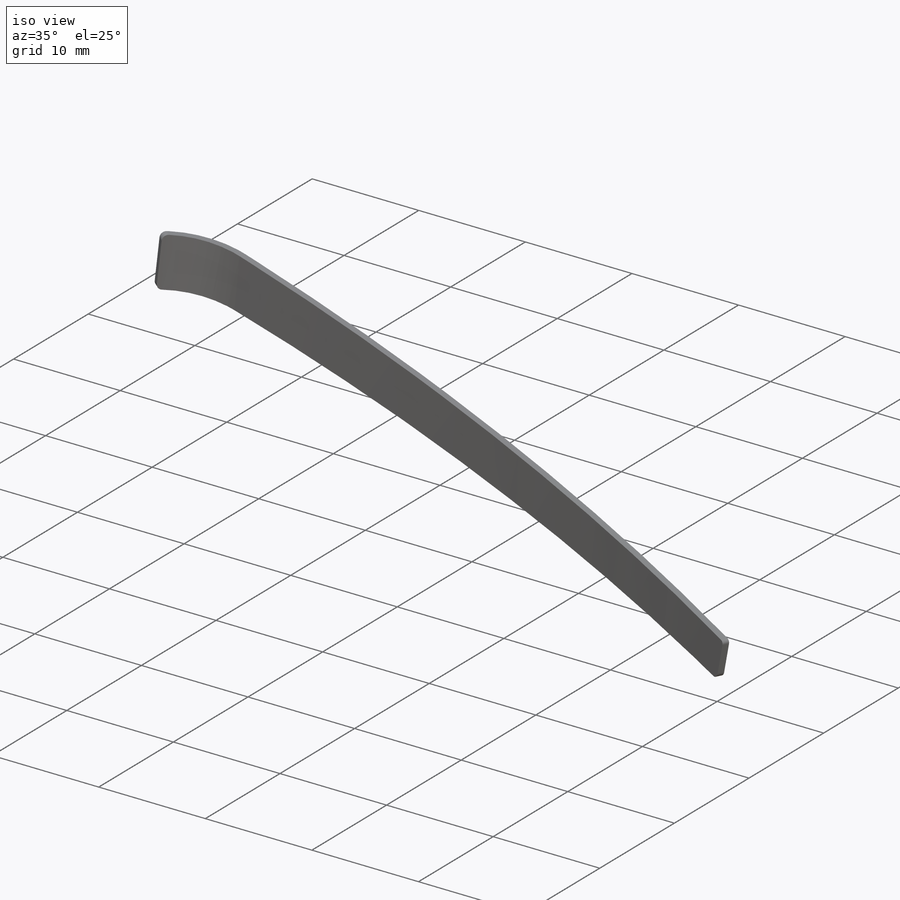
[diagram: iso view]
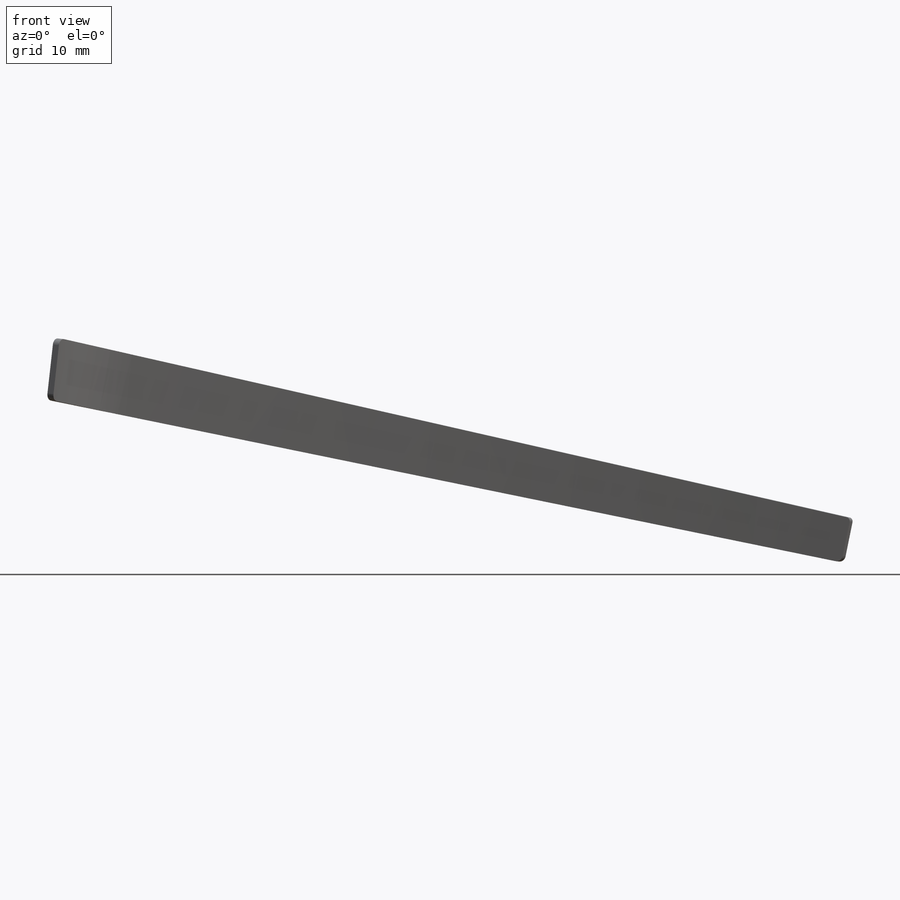
[diagram: front view]
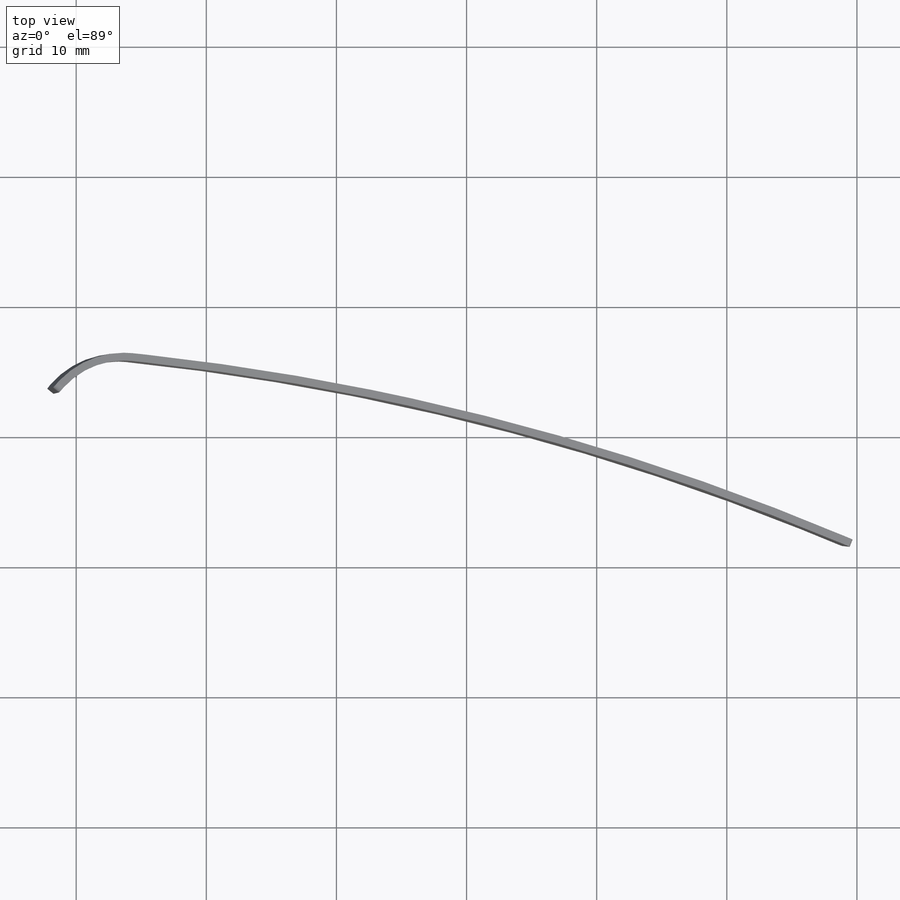
[diagram: top view]
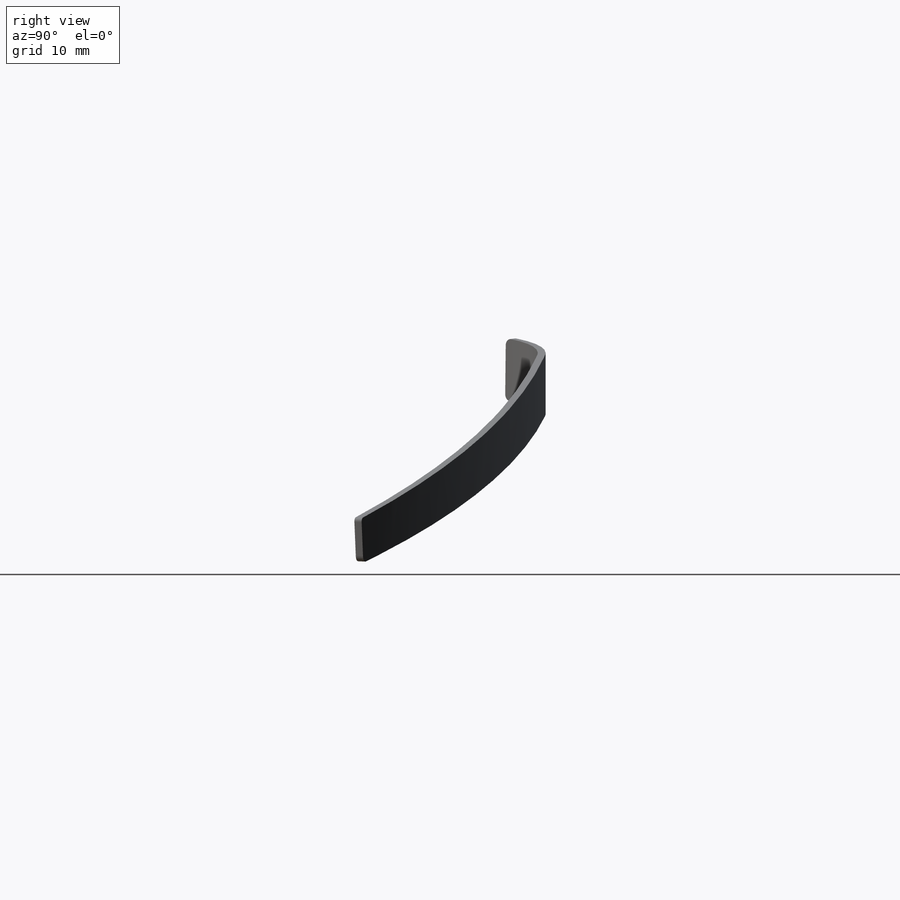
[diagram: right view]
SOLIDWORKS PART (.sldprt)
format: sldprt  version: not decoded by parser v0  size: 587,264 bytes
history: native  units: mm
features: sketch x16, sheet_metal_op x7, plane x4, cut_extrude x3, extrude x2, fillet x2, material x1 + 15 further entries (+9 scaffold rows collapsed; 1 parser-record rows omitted)
feature tree (60):
  scaffold x9  (default folders/planes/origin — collapsed)
  material  "Material <nicht festgelegt>"
  plane  "Ebene vorne"
  plane  "Ebene oben"
  plane  "Ebene rechts"
  sketch  "Model"  dims[c1.D1=0.3mm c1.D2=0.3mm c2.D1=~21.903229mm c3.D1=~84.40887deg c4.D1=~27.059377mm c5.D1=~84.40887deg c6.D1=~27.060817mm]
  extrude  "Aufsatz-Linear austragen1"  Depth=0.6mm
  extrude  "Verbiegen2"  Depth=58mm
  sketch  "Skizze3"
  plane  "Ebene1"
  sketch  "Skizze4"  dims[c1.D1=~197.895916mm c2.D1=3.0mm c2.D2=1.0 c2.D3=0.0mm c2.D6=500.0mm]
  sheet_metal_op  "Basis-Blech1"
  sheet_metal_op  "Basisbiegung2"
  sheet_metal_op  "Basisbiegung3"
  sketch  "Skizze9"
  cut_extrude  "Schnitt-Linear austragen1"  [1 undecoded]
  sketch  "Skizze10"
  cut_extrude  "Schnitt-Linear austragen2"  [1 undecoded]
  sketch  "Skizze11"
  cut_extrude  "Schnitt-Linear austragen3"  [1 undecoded]
  fillet  "Verrundung1"  Radius=0.3mm
  fillet  "Verrundung2"  Radius=0.5mm
  sketch  "Biegung-Linien1"
  sketch  "Rahmen1"
  sheet_metal_op  "Blech8"
  "Abwicklung8"
  sketch  "Biegung-Linien2"
  sketch  "Rahmen2"
  parser-record x1  (decoder bookkeeping rows leaked as tree rows — omitted from the tree; the rows remain in map.json)
  "Abwickeln-<Basisbiegung2>1"
  "Abwickeln-<Basisbiegung3>1"
  sheet_metal_op  "Blech9"
  "Abwicklung8"
  sketch  "Biegung-Linien2"
  sketch  "Rahmen2"
  "Abwickeln-<Basisbiegung1>1"
  "Abwickeln-<Basisbiegung2>1"
  "Abwickeln-<Basisbiegung3>1"
  sheet_metal_op  "Blech11"
  "Abwicklung8"
  sketch  "Biegung-Linien2"
  sketch  "Rahmen2"
  "Abwickeln-<Basisbiegung1>1"
  "Abwickeln-<Basisbiegung2>1"
  "Abwickeln-<Basisbiegung3>1"
  sheet_metal_op  "Blech13"
  "Abwicklung8"
  sketch  "Biegung-Linien2"
  sketch  "Rahmen2"
  "Abwickeln-<Basisbiegung1>1"
  "Abwickeln-<Basisbiegung2>1"
  "Abwickeln-<Basisbiegung3>1"
decode coverage: 6 of 30 modeling features carry decoded parameters; 15 rows unclassified (native names shown)
note: ~ marks probable driven/reference dimensions
note: 3 parameter values undecoded
summary: no parameter record found for 3 features
note: suppression state not decoded; provenance and decode notes live in map.json
